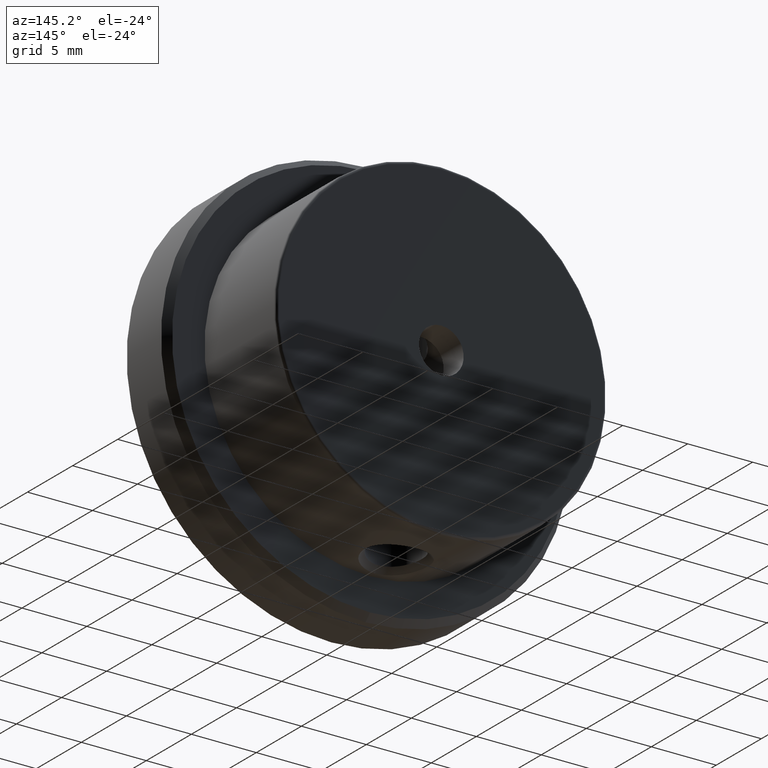
[diagram: clean part render]
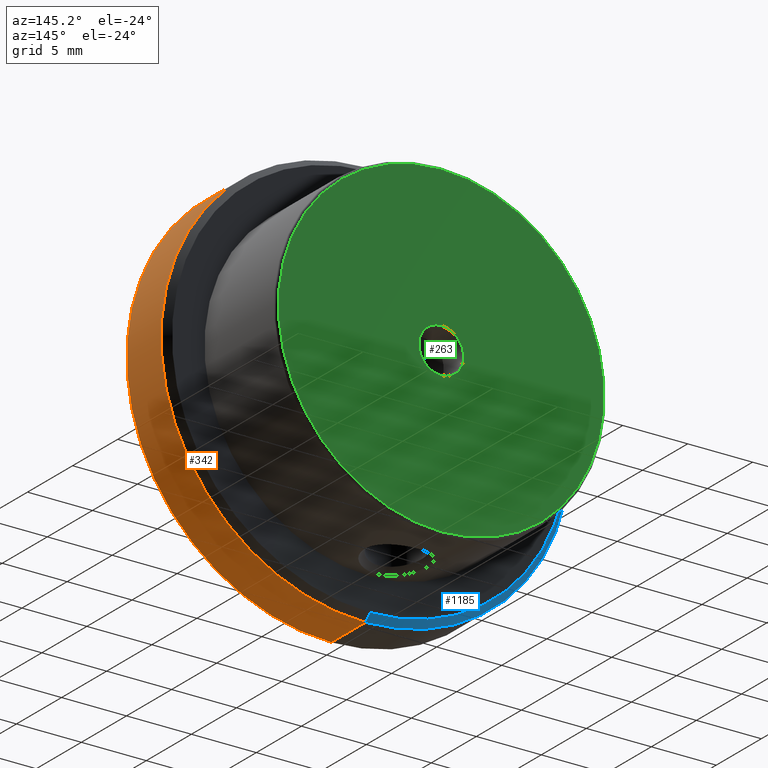
[diagram: same view with three faces highlighted in distinct colors, each labeled with its STEP entity id]
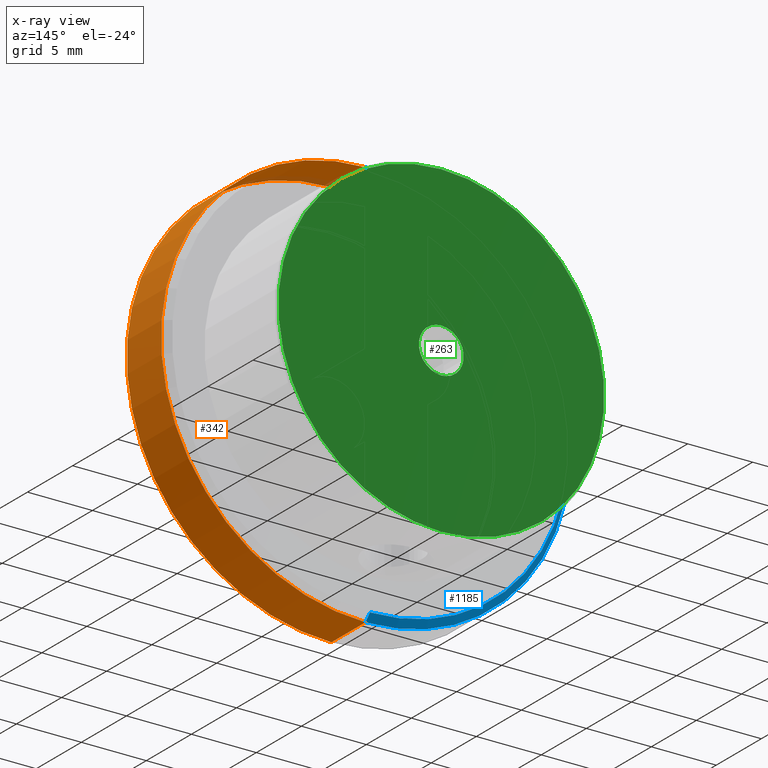
[diagram: x-ray of the same camera — body ghosted, the three highlighted faces saturated]
A machine part, auxiliary view with three faces highlighted in distinct colors.
The next image is the same camera in x-ray (body ghosted, the three faces saturated) — at least one of them is partly hidden behind the body in this view.
Their STEP definitions:

[orange] entity #342 — the highlighted cylindrical surface (partial cylindrical patch) has radius 15.75 mm, axis along (-0, -1, -0).
#19 = VERTEX_POINT ( 'NONE', #723 ) ;
#44 = ORIENTED_EDGE ( 'NONE', *, *, #1278, .F. ) ;
#98 = ORIENTED_EDGE ( 'NONE', *, *, #950, .T. ) ;
#120 = CARTESIAN_POINT ( 'NONE',  ( 1.928818708657081344E-15, 4.299999999999994493, 15.75000000000000000 ) ) ;
#143 = LINE ( 'NONE', #851, #479 ) ;
#196 = FACE_OUTER_BOUND ( 'NONE', #1283, .T. ) ;
#235 = CIRCLE ( 'NONE', #261, 15.75000000000000000 ) ;
#261 = AXIS2_PLACEMENT_3D ( 'NONE', #793, #1047, #582 ) ;
#342 = ADVANCED_FACE ( 'NONE', ( #196 ), #402, .T. ) ;
#370 = CIRCLE ( 'NONE', #733, 15.75000000000000000 ) ;
#393 = DIRECTION ( 'NONE',  ( -0.000000000000000000, -1.000000000000000000, -0.000000000000000000 ) ) ;
#402 = CYLINDRICAL_SURFACE ( 'NONE', #1438, 15.75000000000000000 ) ;
#438 = VERTEX_POINT ( 'NONE', #691 ) ;
#479 = VECTOR ( 'NONE', #494, 1000.000000000000000 ) ;
#480 = VERTEX_POINT ( 'NONE', #811 ) ;
#494 = DIRECTION ( 'NONE',  ( -0.000000000000000000, -1.000000000000000000, -0.000000000000000000 ) ) ;
#522 = EDGE_CURVE ( 'NONE', #480, #438, #1211, .T. ) ;
#582 = DIRECTION ( 'NONE',  ( 0.000000000000000000, 0.000000000000000000, -1.000000000000000000 ) ) ;
#691 = CARTESIAN_POINT ( 'NONE',  ( 1.928818708657081344E-15, 0.5000000000000004441, -15.75000000000000000 ) ) ;
#723 = CARTESIAN_POINT ( 'NONE',  ( 0.000000000000000000, 0.5000000000000004441, 15.75000000000000000 ) ) ;
#733 = AXIS2_PLACEMENT_3D ( 'NONE', #933, #1151, #790 ) ;
#738 = DIRECTION ( 'NONE',  ( -0.000000000000000000, -1.000000000000000000, -0.000000000000000000 ) ) ;
#742 = VERTEX_POINT ( 'NONE', #120 ) ;
#755 = CARTESIAN_POINT ( 'NONE',  ( 0.000000000000000000, -7.650118203309686393, -15.75000000000000000 ) ) ;
#790 = DIRECTION ( 'NONE',  ( 0.000000000000000000, 0.000000000000000000, -1.000000000000000000 ) ) ;
#793 = CARTESIAN_POINT ( 'NONE',  ( 0.000000000000000000, 0.5000000000000004441, 0.000000000000000000 ) ) ;
#811 = CARTESIAN_POINT ( 'NONE',  ( 0.000000000000000000, 4.299999999999994493, -15.75000000000000000 ) ) ;
#851 = CARTESIAN_POINT ( 'NONE',  ( 1.928818708657081344E-15, -7.650118203309686393, 15.75000000000000000 ) ) ;
#933 = CARTESIAN_POINT ( 'NONE',  ( 0.000000000000000000, 4.299999999999994493, 0.000000000000000000 ) ) ;
#950 = EDGE_CURVE ( 'NONE', #480, #742, #370, .T. ) ;
#972 = CARTESIAN_POINT ( 'NONE',  ( 0.000000000000000000, -7.650118203309686393, 0.000000000000000000 ) ) ;
#1012 = VECTOR ( 'NONE', #393, 1000.000000000000000 ) ;
#1047 = DIRECTION ( 'NONE',  ( -0.000000000000000000, -1.000000000000000000, -0.000000000000000000 ) ) ;
#1072 = ORIENTED_EDGE ( 'NONE', *, *, #522, .F. ) ;
#1151 = DIRECTION ( 'NONE',  ( -0.000000000000000000, -1.000000000000000000, -0.000000000000000000 ) ) ;
#1162 = EDGE_CURVE ( 'NONE', #742, #19, #143, .T. ) ;
#1211 = LINE ( 'NONE', #755, #1012 ) ;
#1278 = EDGE_CURVE ( 'NONE', #438, #19, #235, .T. ) ;
#1283 = EDGE_LOOP ( 'NONE', ( #98, #1328, #44, #1072 ) ) ;
#1323 = DIRECTION ( 'NONE',  ( 0.000000000000000000, 0.000000000000000000, -1.000000000000000000 ) ) ;
#1328 = ORIENTED_EDGE ( 'NONE', *, *, #1162, .T. ) ;
#1438 = AXIS2_PLACEMENT_3D ( 'NONE', #972, #738, #1323 ) ;

[blue] entity #1185 — the highlighted conical surface has half-angle 45 deg.
#11 = AXIS2_PLACEMENT_3D ( 'NONE', #1301, #282, #720 ) ;
#22 = CARTESIAN_POINT ( 'NONE',  ( 1.898202538678397557E-15, 4.799999999999995381, 15.25000000000000000 ) ) ;
#45 = CARTESIAN_POINT ( 'NONE',  ( 0.000000000000000000, 4.799999999999995381, -15.25000000000000000 ) ) ;
#64 = ORIENTED_EDGE ( 'NONE', *, *, #997, .T. ) ;
#120 = CARTESIAN_POINT ( 'NONE',  ( 1.928818708657081344E-15, 4.299999999999994493, 15.75000000000000000 ) ) ;
#133 = ORIENTED_EDGE ( 'NONE', *, *, #1402, .F. ) ;
#152 = FACE_OUTER_BOUND ( 'NONE', #809, .T. ) ;
#195 = CARTESIAN_POINT ( 'NONE',  ( 0.000000000000000000, 4.299999999999994493, 0.000000000000000000 ) ) ;
#239 = DIRECTION ( 'NONE',  ( 8.659560562354931626E-17, -0.7071067811865475727, 0.7071067811865474617 ) ) ;
#282 = DIRECTION ( 'NONE',  ( -0.000000000000000000, -1.000000000000000000, -0.000000000000000000 ) ) ;
#289 = CARTESIAN_POINT ( 'NONE',  ( 0.000000000000000000, 4.799999999999995381, 0.000000000000000000 ) ) ;
#311 = AXIS2_PLACEMENT_3D ( 'NONE', #289, #956, #844 ) ;
#407 = EDGE_CURVE ( 'NONE', #1265, #1129, #1010, .T. ) ;
#453 = DIRECTION ( 'NONE',  ( 0.000000000000000000, -0.7071067811865475727, -0.7071067811865474617 ) ) ;
#467 = AXIS2_PLACEMENT_3D ( 'NONE', #195, #1106, #1432 ) ;
#480 = VERTEX_POINT ( 'NONE', #811 ) ;
#720 = DIRECTION ( 'NONE',  ( 0.000000000000000000, 0.000000000000000000, -1.000000000000000000 ) ) ;
#736 = EDGE_CURVE ( 'NONE', #1265, #742, #896, .T. ) ;
#742 = VERTEX_POINT ( 'NONE', #120 ) ;
#788 = ORIENTED_EDGE ( 'NONE', *, *, #736, .F. ) ;
#805 = CARTESIAN_POINT ( 'NONE',  ( 0.000000000000000000, 4.799999999999995381, -15.25000000000000000 ) ) ;
#809 = EDGE_LOOP ( 'NONE', ( #788, #1105, #64, #133 ) ) ;
#811 = CARTESIAN_POINT ( 'NONE',  ( 0.000000000000000000, 4.299999999999994493, -15.75000000000000000 ) ) ;
#839 = VECTOR ( 'NONE', #239, 1000.000000000000000 ) ;
#844 = DIRECTION ( 'NONE',  ( 0.000000000000000000, 0.000000000000000000, -1.000000000000000000 ) ) ;
#896 = LINE ( 'NONE', #1126, #839 ) ;
#924 = LINE ( 'NONE', #805, #937 ) ;
#927 = CIRCLE ( 'NONE', #467, 15.75000000000000000 ) ;
#937 = VECTOR ( 'NONE', #453, 1000.000000000000000 ) ;
#956 = DIRECTION ( 'NONE',  ( -0.000000000000000000, -1.000000000000000000, -0.000000000000000000 ) ) ;
#997 = EDGE_CURVE ( 'NONE', #1129, #480, #924, .T. ) ;
#1010 = CIRCLE ( 'NONE', #11, 15.25000000000000000 ) ;
#1029 = CONICAL_SURFACE ( 'NONE', #311, 15.25000000000000000, 0.7853981633974482790 ) ;
#1105 = ORIENTED_EDGE ( 'NONE', *, *, #407, .T. ) ;
#1106 = DIRECTION ( 'NONE',  ( -0.000000000000000000, -1.000000000000000000, -0.000000000000000000 ) ) ;
#1126 = CARTESIAN_POINT ( 'NONE',  ( 1.867586368699713770E-15, 4.799999999999995381, 15.25000000000000000 ) ) ;
#1129 = VERTEX_POINT ( 'NONE', #45 ) ;
#1185 = ADVANCED_FACE ( 'NONE', ( #152 ), #1029, .T. ) ;
#1265 = VERTEX_POINT ( 'NONE', #22 ) ;
#1301 = CARTESIAN_POINT ( 'NONE',  ( 0.000000000000000000, 4.799999999999995381, 0.000000000000000000 ) ) ;
#1402 = EDGE_CURVE ( 'NONE', #742, #480, #927, .T. ) ;
#1432 = DIRECTION ( 'NONE',  ( 0.000000000000000000, 0.000000000000000000, -1.000000000000000000 ) ) ;

[green] entity #263 — the highlighted planar face has unit normal (0, -1, -0).
#27 = AXIS2_PLACEMENT_3D ( 'NONE', #484, #500, #1150 ) ;
#30 = CARTESIAN_POINT ( 'NONE',  ( 1.549178200921401754E-15, 12.69999999999999929, 12.54999999999999893 ) ) ;
#118 = ORIENTED_EDGE ( 'NONE', *, *, #1174, .F. ) ;
#128 = CARTESIAN_POINT ( 'NONE',  ( 0.000000000000000000, 12.69999999999999929, 0.000000000000000000 ) ) ;
#130 = ORIENTED_EDGE ( 'NONE', *, *, #292, .F. ) ;
#246 = EDGE_CURVE ( 'NONE', #773, #1027, #1454, .T. ) ;
#263 = ADVANCED_FACE ( 'NONE', ( #274, #837 ), #1294, .F. ) ;
#268 = DIRECTION ( 'NONE',  ( 0.000000000000000000, 0.000000000000000000, 1.000000000000000000 ) ) ;
#274 = FACE_BOUND ( 'NONE', #279, .T. ) ;
#279 = EDGE_LOOP ( 'NONE', ( #118, #649 ) ) ;
#285 = CIRCLE ( 'NONE', #632, 1.727199999999998958 ) ;
#292 = EDGE_CURVE ( 'NONE', #1027, #773, #727, .T. ) ;
#316 = AXIS2_PLACEMENT_3D ( 'NONE', #713, #1180, #1164 ) ;
#339 = EDGE_LOOP ( 'NONE', ( #1090, #130 ) ) ;
#398 = CARTESIAN_POINT ( 'NONE',  ( 0.000000000000000000, 12.69999999999999929, -12.54999999999999893 ) ) ;
#484 = CARTESIAN_POINT ( 'NONE',  ( 0.000000000000000000, 12.69999999999999929, 0.000000000000000000 ) ) ;
#500 = DIRECTION ( 'NONE',  ( -0.000000000000000000, -1.000000000000000000, -0.000000000000000000 ) ) ;
#573 = CIRCLE ( 'NONE', #887, 1.727199999999998958 ) ;
#594 = CARTESIAN_POINT ( 'NONE',  ( 0.000000000000000000, 12.69999999999999929, 0.000000000000000000 ) ) ;
#616 = AXIS2_PLACEMENT_3D ( 'NONE', #128, #955, #1063 ) ;
#632 = AXIS2_PLACEMENT_3D ( 'NONE', #594, #1288, #268 ) ;
#649 = ORIENTED_EDGE ( 'NONE', *, *, #794, .F. ) ;
#713 = CARTESIAN_POINT ( 'NONE',  ( -12.54999999999999893, 12.69999999999999929, 0.000000000000000000 ) ) ;
#727 = CIRCLE ( 'NONE', #27, 12.54999999999999893 ) ;
#773 = VERTEX_POINT ( 'NONE', #398 ) ;
#794 = EDGE_CURVE ( 'NONE', #847, #1044, #573, .T. ) ;
#837 = FACE_OUTER_BOUND ( 'NONE', #339, .T. ) ;
#847 = VERTEX_POINT ( 'NONE', #949 ) ;
#860 = CARTESIAN_POINT ( 'NONE',  ( 0.000000000000000000, 12.69999999999999929, 0.000000000000000000 ) ) ;
#887 = AXIS2_PLACEMENT_3D ( 'NONE', #860, #1084, #1319 ) ;
#949 = CARTESIAN_POINT ( 'NONE',  ( 2.115209951487307030E-16, 12.69999999999999929, -1.727199999999998958 ) ) ;
#955 = DIRECTION ( 'NONE',  ( -0.000000000000000000, -1.000000000000000000, -0.000000000000000000 ) ) ;
#1027 = VERTEX_POINT ( 'NONE', #30 ) ;
#1044 = VERTEX_POINT ( 'NONE', #1267 ) ;
#1063 = DIRECTION ( 'NONE',  ( 0.000000000000000000, 0.000000000000000000, -1.000000000000000000 ) ) ;
#1084 = DIRECTION ( 'NONE',  ( -0.000000000000000000, 1.000000000000000000, -0.000000000000000000 ) ) ;
#1090 = ORIENTED_EDGE ( 'NONE', *, *, #246, .F. ) ;
#1150 = DIRECTION ( 'NONE',  ( 0.000000000000000000, 0.000000000000000000, -1.000000000000000000 ) ) ;
#1164 = DIRECTION ( 'NONE',  ( 0.000000000000000000, 0.000000000000000000, -1.000000000000000000 ) ) ;
#1174 = EDGE_CURVE ( 'NONE', #1044, #847, #285, .T. ) ;
#1180 = DIRECTION ( 'NONE',  ( 0.000000000000000000, -1.000000000000000000, -0.000000000000000000 ) ) ;
#1267 = CARTESIAN_POINT ( 'NONE',  ( 0.000000000000000000, 12.69999999999999929, 1.727199999999998958 ) ) ;
#1288 = DIRECTION ( 'NONE',  ( -0.000000000000000000, 1.000000000000000000, -0.000000000000000000 ) ) ;
#1294 = PLANE ( 'NONE',  #316 ) ;
#1319 = DIRECTION ( 'NONE',  ( 0.000000000000000000, 0.000000000000000000, 1.000000000000000000 ) ) ;
#1454 = CIRCLE ( 'NONE', #616, 12.54999999999999893 ) ;